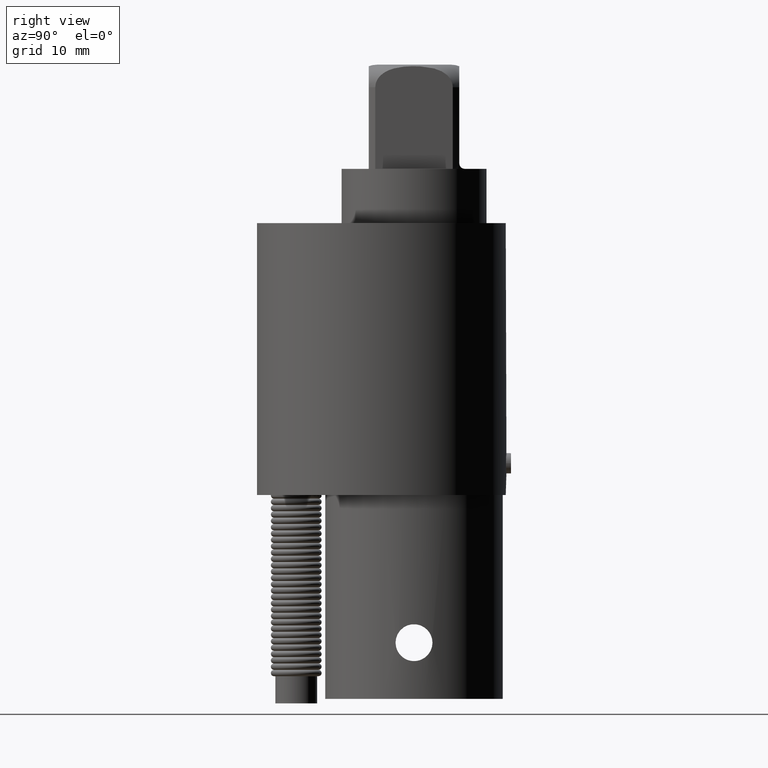
[diagram: clean part render]
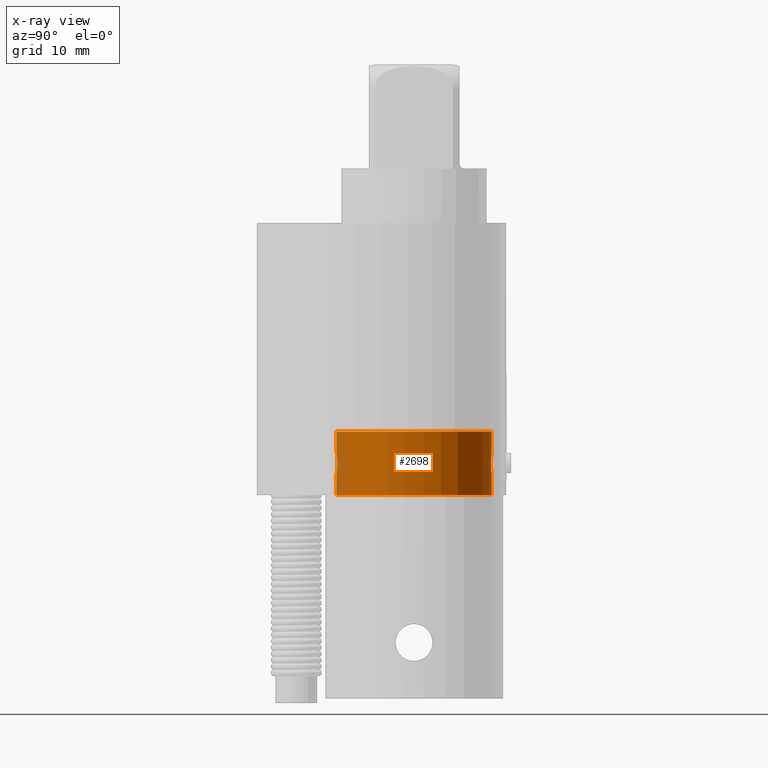
[diagram: x-ray — body ghosted, one internal face saturated and labeled with its STEP entity id]
A machine part, right view, then the same camera in x-ray: the body is ghosted and one INTERNAL B-rep face — a face not visible from any outside direction — is saturated and labeled: STEP entity #2698.
In plain terms, the highlighted cylindrical surface (bore or boss wall) has radius 10.8712 mm, axis along (-0, 0, 1).
Its self-contained STEP definition (entity closure, byte-faithful):
#978=CARTESIAN_POINT('',(7.760148463542943,4.193497579026910,-0.536589017621504));
#979=VERTEX_POINT('',#978);
#987=CARTESIAN_POINT('',(7.760148463542943,4.193497579026911,-0.488547369023692));
#988=VERTEX_POINT('',#987);
#989=CARTESIAN_POINT('',(7.760148463542943,4.193497579026911,-0.488547369023692));
#990=CARTESIAN_POINT('',(7.759855979582345,4.193462765480394,-0.489244485644931));
#991=CARTESIAN_POINT('',(7.759576253869076,4.193429164692394,-0.489947537466776));
#992=CARTESIAN_POINT('',(7.756629221584653,4.193072486199813,-0.497773662645289));
#993=CARTESIAN_POINT('',(7.755335564915786,4.192897037133845,-0.505429151177098));
#994=CARTESIAN_POINT('',(7.755335564915786,4.192897037133845,-0.519707235468098));
#995=CARTESIAN_POINT('',(7.756629221584653,4.193072486199813,-0.527362723999908));
#996=CARTESIAN_POINT('',(7.759576253869076,4.193429164692394,-0.535188849178420));
#997=CARTESIAN_POINT('',(7.759855979582346,4.193462765480394,-0.535891901000264));
#998=CARTESIAN_POINT('',(7.760148463542945,4.193497579026911,-0.536589017621503));
#999=B_SPLINE_CURVE_WITH_KNOTS('',3,(#989,#990,#991,#992,#993,#994,#995,#996,#997,#998),.UNSPECIFIED.,.F.,.U.,(4,2,2,2,4),(0.378590436049472,0.384002032086171,0.438401533234882,0.492801034383592,0.498212630420289),.UNSPECIFIED.);
#1000=EDGE_CURVE('',#988,#979,#999,.T.);
#1098=CARTESIAN_POINT('',(7.861321582502502,4.193497579026911,-0.536589017621498));
#1099=VERTEX_POINT('',#1098);
#1107=CARTESIAN_POINT('',(7.760148463542943,4.193497579026911,-0.536589017621503));
#1108=CARTESIAN_POINT('',(7.762945024350676,4.193830445826062,-0.542478423741746));
#1109=CARTESIAN_POINT('',(7.766795773224374,4.194258488067491,-0.547824903017144));
#1110=CARTESIAN_POINT('',(7.776104452036203,4.195123424163284,-0.557133581828972));
#1111=CARTESIAN_POINT('',(7.782396110281467,4.195614191276518,-0.561442044056990));
#1112=CARTESIAN_POINT('',(7.796190998542881,4.196306141102691,-0.567159571990608));
#1113=CARTESIAN_POINT('',(7.803694899801958,4.196497579026913,-0.568568193322598));
#1114=CARTESIAN_POINT('',(7.817775146243486,4.196497579026913,-0.568568193322598));
#1115=CARTESIAN_POINT('',(7.825279047502561,4.196306141102691,-0.567159571990608));
#1116=CARTESIAN_POINT('',(7.839073935763977,4.195614191276518,-0.561442044056990));
#1117=CARTESIAN_POINT('',(7.845365594009240,4.195123424163284,-0.557133581828972));
#1118=CARTESIAN_POINT('',(7.854674272821069,4.194258488067491,-0.547824903017142));
#1119=CARTESIAN_POINT('',(7.858525021694768,4.193830445826063,-0.542478423741745));
#1120=CARTESIAN_POINT('',(7.861321582502503,4.193497579026911,-0.536589017621498));
#1121=B_SPLINE_CURVE_WITH_KNOTS('',3,(#1107,#1108,#1109,#1110,#1111,#1112,#1113,#1114,#1115,#1116,#1117,#1118,#1119,#1120),.UNSPECIFIED.,.F.,.U.,(4,2,2,2,2,2,4),(0.489576894187396,0.536460621929041,0.590106360871262,0.643752099813483,0.697397838755704,0.751043577697925,0.797927305439591),.UNSPECIFIED.);
#1122=EDGE_CURVE('',#979,#1099,#1121,.T.);
#1157=CARTESIAN_POINT('',(7.861321582502503,4.193497579026911,-0.488547369023697));
#1158=VERTEX_POINT('',#1157);
#1159=CARTESIAN_POINT('',(7.861321582502503,4.193497579026911,-0.488547369023698));
#1160=CARTESIAN_POINT('',(7.858525021694768,4.193830445826062,-0.482657962903451));
#1161=CARTESIAN_POINT('',(7.854674272821071,4.194258488067491,-0.477311483628053));
#1162=CARTESIAN_POINT('',(7.845365594009239,4.195123424163283,-0.468002804816223));
#1163=CARTESIAN_POINT('',(7.839073935763977,4.195614191276518,-0.463694342588205));
#1164=CARTESIAN_POINT('',(7.825279047502561,4.196306141102691,-0.457976814654587));
#1165=CARTESIAN_POINT('',(7.817775146243484,4.196497579026913,-0.456568193322597));
#1166=CARTESIAN_POINT('',(7.803694899801958,4.196497579026913,-0.456568193322597));
#1167=CARTESIAN_POINT('',(7.796190998542879,4.196306141102691,-0.457976814654588));
#1168=CARTESIAN_POINT('',(7.782396110281464,4.195614191276518,-0.463694342588207));
#1169=CARTESIAN_POINT('',(7.776104452036203,4.195123424163284,-0.468002804816223));
#1170=CARTESIAN_POINT('',(7.766795773224375,4.194258488067491,-0.477311483628051));
#1171=CARTESIAN_POINT('',(7.762945024350678,4.193830445826062,-0.482657962903447));
#1172=CARTESIAN_POINT('',(7.760148463542943,4.193497579026911,-0.488547369023691));
#1173=B_SPLINE_CURVE_WITH_KNOTS('',3,(#1159,#1160,#1161,#1162,#1163,#1164,#1165,#1166,#1167,#1168,#1169,#1170,#1171,#1172),.UNSPECIFIED.,.F.,.U.,(4,2,2,2,2,2,4),(0.060408827645055,0.107292555386719,0.160938294328940,0.214584033271161,0.268229772213382,0.321875511155603,0.368759238897250),.UNSPECIFIED.);
#1174=EDGE_CURVE('',#1158,#988,#1173,.T.);
#1401=CARTESIAN_POINT('',(7.861321582502502,4.193497579026911,-0.536589017621498));
#1402=CARTESIAN_POINT('',(7.861614066463100,4.193462765480394,-0.535891901000260));
#1403=CARTESIAN_POINT('',(7.861893792176367,4.193429164692394,-0.535188849178419));
#1404=CARTESIAN_POINT('',(7.864840824460790,4.193072486199813,-0.527362723999908));
#1405=CARTESIAN_POINT('',(7.866134481129658,4.192897037133845,-0.519707235468098));
#1406=CARTESIAN_POINT('',(7.866134481129658,4.192897037133845,-0.512568193322598));
#1407=CARTESIAN_POINT('',(7.866134481129658,4.192897037133845,-0.505429151177098));
#1408=CARTESIAN_POINT('',(7.864840824460790,4.193072486199813,-0.497773662645287));
#1409=CARTESIAN_POINT('',(7.861893792176367,4.193429164692394,-0.489947537466777));
#1410=CARTESIAN_POINT('',(7.861614066463100,4.193462765480394,-0.489244485644934));
#1411=CARTESIAN_POINT('',(7.861321582502503,4.193497579026911,-0.488547369023697));
#1412=B_SPLINE_CURVE_WITH_KNOTS('',3,(#1401,#1402,#1403,#1404,#1405,#1406,#1407,#1408,#1409,#1410,#1411),.UNSPECIFIED.,.F.,.U.,(4,2,3,2,4),(-0.059811097185394,-0.054399501148711,0.0,0.054399501148711,0.059811097185391),.UNSPECIFIED.);
#1413=EDGE_CURVE('',#1099,#1158,#1412,.T.);
#2093=CARTESIAN_POINT('',(7.810735023022723,3.340497579026912,-0.448068193322603));
#2094=VERTEX_POINT('',#2093);
#2095=CARTESIAN_POINT('',(7.810735023022723,3.340497579026912,-0.577068193322603));
#2096=VERTEX_POINT('',#2095);
#2097=CARTESIAN_POINT('',(7.810735023022723,3.340497579026912,-0.448068193322603));
#2098=CARTESIAN_POINT('',(7.818847004126263,3.340497579026912,-0.448068193322603));
#2099=CARTESIAN_POINT('',(7.827491306422306,3.340751691872294,-0.449691901787485));
#2100=CARTESIAN_POINT('',(7.843379180130778,3.341670124403511,-0.456278229241245));
#2101=CARTESIAN_POINT('',(7.850623773717117,3.342321585379247,-0.461240169243932));
#2102=CARTESIAN_POINT('',(7.862063148728574,3.343547564694682,-0.472679544255389));
#2103=CARTESIAN_POINT('',(7.867025009013218,3.344202285055845,-0.479924093999950));
#2104=CARTESIAN_POINT('',(7.873611278458294,3.345128194658494,-0.495811817906806));
#2105=CARTESIAN_POINT('',(7.875235023022723,3.345385596213852,-0.504456068084426));
#2106=CARTESIAN_POINT('',(7.875235023022723,3.345385596213852,-0.520680318560781));
#2107=CARTESIAN_POINT('',(7.873611278458294,3.345128194658494,-0.529324568738401));
#2108=CARTESIAN_POINT('',(7.867025009013218,3.344202285055845,-0.545212292645257));
#2109=CARTESIAN_POINT('',(7.862063148728574,3.343547564694682,-0.552456842389817));
#2110=CARTESIAN_POINT('',(7.850623773717117,3.342321585379247,-0.563896217401274));
#2111=CARTESIAN_POINT('',(7.843379180130778,3.341670124403511,-0.568858157403962));
#2112=CARTESIAN_POINT('',(7.827491306422306,3.340751691872294,-0.575444484857721));
#2113=CARTESIAN_POINT('',(7.818847004126263,3.340497579026912,-0.577068193322603));
#2114=CARTESIAN_POINT('',(7.810735023022723,3.340497579026912,-0.577068193322603));
#2115=B_SPLINE_CURVE_WITH_KNOTS('',3,(#2097,#2098,#2099,#2100,#2101,#2102,#2103,#2104,#2105,#2106,#2107,#2108,#2109,#2110,#2111,#2112,#2113,#2114),.UNSPECIFIED.,.F.,.U.,(4,2,2,2,2,2,2,2,4),(0.247255380647777,0.309068676656753,0.370881972665728,0.432696366980641,0.494510761295554,0.556325155610466,0.618139549925379,0.679952845934355,0.741766141943331),.UNSPECIFIED.);
#2116=EDGE_CURVE('',#2094,#2096,#2115,.T.);
#2118=CARTESIAN_POINT('',(7.810735023022723,3.340497579026912,-0.577068193322603));
#2119=CARTESIAN_POINT('',(7.802623041919182,3.340497579026912,-0.577068193322603));
#2120=CARTESIAN_POINT('',(7.793978739623141,3.340751691872294,-0.575444484857721));
#2121=CARTESIAN_POINT('',(7.778090865914668,3.341670124403511,-0.568858157403962));
#2122=CARTESIAN_POINT('',(7.770846272328329,3.342321585379247,-0.563896217401274));
#2123=CARTESIAN_POINT('',(7.759406897316873,3.343547564694682,-0.552456842389817));
#2124=CARTESIAN_POINT('',(7.754445037032227,3.344202285055845,-0.545212292645257));
#2125=CARTESIAN_POINT('',(7.747858767587152,3.345128194658494,-0.529324568738401));
#2126=CARTESIAN_POINT('',(7.746235023022723,3.345385596213852,-0.520680318560781));
#2127=CARTESIAN_POINT('',(7.746235023022723,3.345385596213852,-0.512568193322603));
#2128=CARTESIAN_POINT('',(7.746235023022723,3.345385596213852,-0.504456068084426));
#2129=CARTESIAN_POINT('',(7.747858767587152,3.345128194658494,-0.495811817906806));
#2130=CARTESIAN_POINT('',(7.754445037032227,3.344202285055845,-0.479924093999950));
#2131=CARTESIAN_POINT('',(7.759406897316873,3.343547564694682,-0.472679544255389));
#2132=CARTESIAN_POINT('',(7.770846272328329,3.342321585379247,-0.461240169243932));
#2133=CARTESIAN_POINT('',(7.778090865914668,3.341670124403511,-0.456278229241245));
#2134=CARTESIAN_POINT('',(7.793978739623141,3.340751691872294,-0.449691901787485));
#2135=CARTESIAN_POINT('',(7.802623041919182,3.340497579026912,-0.448068193322603));
#2136=CARTESIAN_POINT('',(7.810735023022723,3.340497579026912,-0.448068193322603));
#2137=B_SPLINE_CURVE_WITH_KNOTS('',3,(#2118,#2119,#2120,#2121,#2122,#2123,#2124,#2125,#2126,#2127,#2128,#2129,#2130,#2131,#2132,#2133,#2134,#2135,#2136),.UNSPECIFIED.,.F.,.U.,(4,2,2,2,3,2,2,2,4),(0.741766141943331,0.803579437952306,0.865392733961282,0.927207128276195,0.989021522591107,1.050835916906020,1.112650311220933,1.174463607229908,1.236276903238884),.UNSPECIFIED.);
#2138=EDGE_CURVE('',#2096,#2094,#2137,.T.);
#2657=CARTESIAN_POINT('',(7.810735023022723,4.196497579026913,-0.687568193322603));
#2658=VERTEX_POINT('',#2657);
#2659=CARTESIAN_POINT('',(7.810735023022723,3.768497579026912,-0.687568193322603));
#2660=DIRECTION('',(0.0,0.0,1.0));
#2661=DIRECTION('',(0.0,1.0,0.0));
#2662=AXIS2_PLACEMENT_3D('',#2659,#2660,#2661);
#2663=CIRCLE('',#2662,0.428000000000000);
#2664=EDGE_CURVE('',#2658,#2658,#2663,.T.);
#2669=CARTESIAN_POINT('',(7.810735023022723,3.768497579026912,-0.512568193322603));
#2670=DIRECTION('',(-1.872135E-016,4.837723E-017,1.0));
#2671=DIRECTION('',(0.0,1.0,0.0));
#2672=AXIS2_PLACEMENT_3D('',#2669,#2670,#2671);
#2673=CYLINDRICAL_SURFACE('',#2672,0.428000000000000);
#2674=CARTESIAN_POINT('',(7.810735023022723,4.196497579026913,-0.337568193322603));
#2675=VERTEX_POINT('',#2674);
#2676=CARTESIAN_POINT('',(7.810735023022723,3.768497579026912,-0.337568193322603));
#2677=DIRECTION('',(0.0,0.0,1.0));
#2678=DIRECTION('',(0.0,1.0,0.0));
#2679=AXIS2_PLACEMENT_3D('',#2676,#2677,#2678);
#2680=CIRCLE('',#2679,0.428000000000000);
#2681=EDGE_CURVE('',#2675,#2675,#2680,.T.);
#2682=ORIENTED_EDGE('',*,*,#2681,.F.);
#2683=EDGE_LOOP('',(#2682));
#2684=FACE_OUTER_BOUND('',#2683,.T.);
#2685=ORIENTED_EDGE('',*,*,#1413,.T.);
#2686=ORIENTED_EDGE('',*,*,#1174,.T.);
#2687=ORIENTED_EDGE('',*,*,#1000,.T.);
#2688=ORIENTED_EDGE('',*,*,#1122,.T.);
#2689=EDGE_LOOP('',(#2685,#2686,#2687,#2688));
#2690=FACE_BOUND('',#2689,.T.);
#2691=ORIENTED_EDGE('',*,*,#2116,.T.);
#2692=ORIENTED_EDGE('',*,*,#2138,.T.);
#2693=EDGE_LOOP('',(#2691,#2692));
#2694=FACE_BOUND('',#2693,.T.);
#2695=ORIENTED_EDGE('',*,*,#2664,.T.);
#2696=EDGE_LOOP('',(#2695));
#2697=FACE_BOUND('',#2696,.T.);
#2698=ADVANCED_FACE('',(#2684,#2690,#2694,#2697),#2673,.T.);